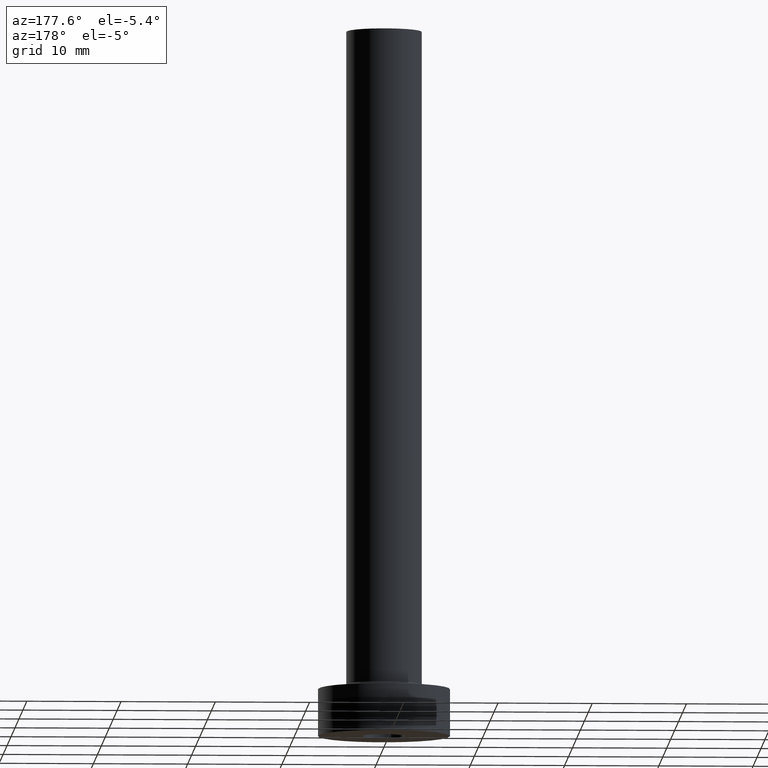
[diagram: clean part render]
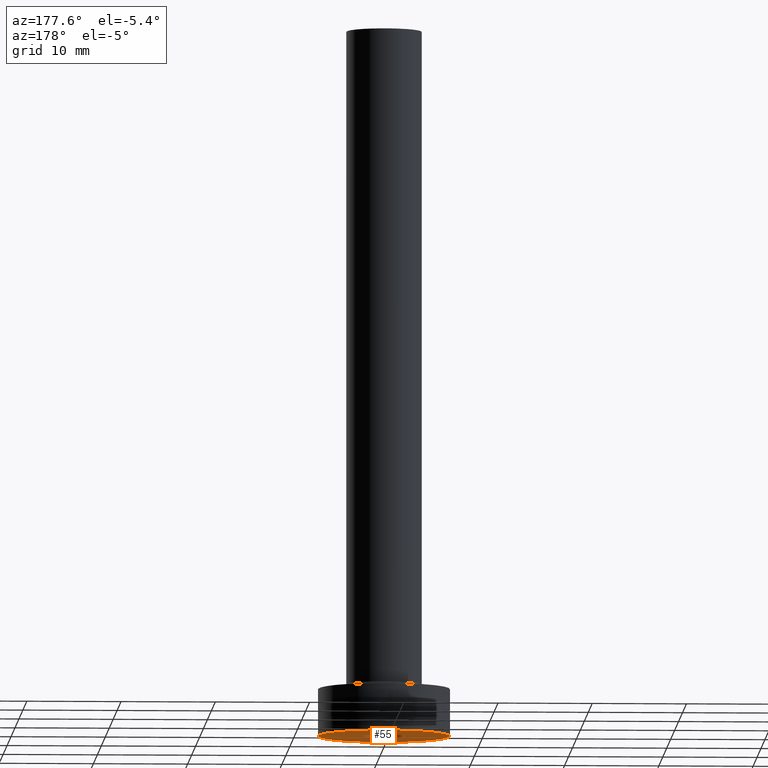
[diagram: same view with one face highlighted and labeled with its STEP entity id]
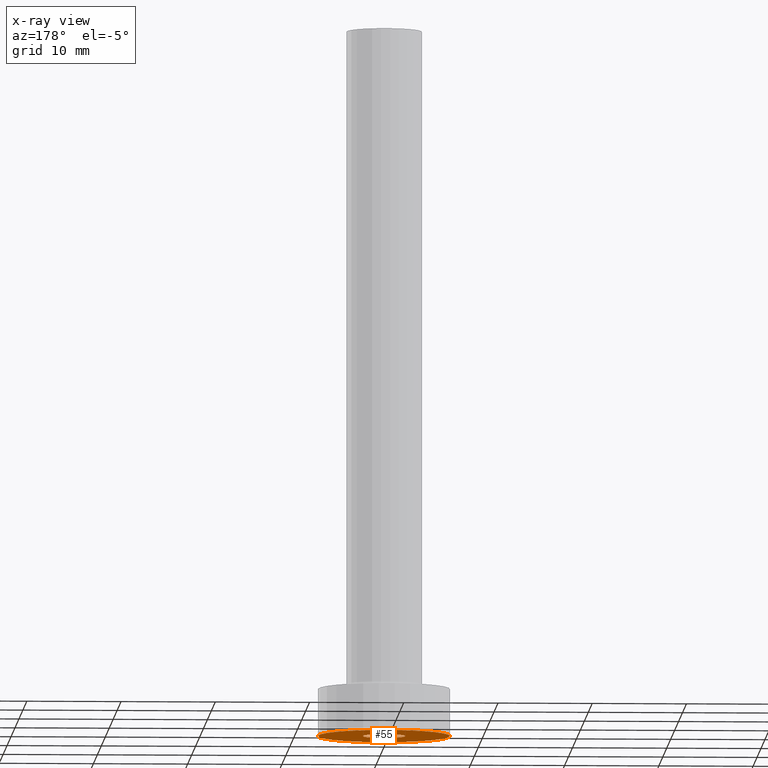
[diagram: x-ray of the same camera — body ghosted, the highlighted face saturated]
A machine part, auxiliary view. The second image highlights one B-rep face of the part: STEP entity #55.
The next image is the same camera in x-ray: the body ghosted, the highlighted face saturated — about 0% of this face is hidden behind the body in this view.
In plain terms, the highlighted planar face has unit normal (0, 0, 1).
Its self-contained STEP definition (entity closure, byte-faithful):
#2 = AXIS2_PLACEMENT_3D ( 'NONE', #210, #122, #198 ) ;
#17 = EDGE_LOOP ( 'NONE', ( #237, #447 ) ) ;
#21 = DIRECTION ( 'NONE',  ( 1.000000000000000000, 0.000000000000000000, 0.000000000000000000 ) ) ;
#55 = ADVANCED_FACE ( 'NONE', ( #299, #445 ), #199, .F. ) ;
#74 = CARTESIAN_POINT ( 'NONE',  ( 2.250000000000000000, 2.755455298081544285E-16, 0.000000000000000000 ) ) ;
#99 = EDGE_CURVE ( 'NONE', #412, #115, #212, .T. ) ;
#115 = VERTEX_POINT ( 'NONE', #383 ) ;
#119 = CIRCLE ( 'NONE', #379, 7.000000000000000000 ) ;
#122 = DIRECTION ( 'NONE',  ( -0.000000000000000000, -0.000000000000000000, -1.000000000000000000 ) ) ;
#132 = CIRCLE ( 'NONE', #182, 2.250000000000000000 ) ;
#161 = DIRECTION ( 'NONE',  ( 1.000000000000000000, 0.000000000000000000, 0.000000000000000000 ) ) ;
#163 = CARTESIAN_POINT ( 'NONE',  ( 0.000000000000000000, 0.000000000000000000, 0.000000000000000000 ) ) ;
#176 = DIRECTION ( 'NONE',  ( 1.000000000000000000, 0.000000000000000000, 0.000000000000000000 ) ) ;
#177 = DIRECTION ( 'NONE',  ( 0.000000000000000000, 0.000000000000000000, 1.000000000000000000 ) ) ;
#182 = AXIS2_PLACEMENT_3D ( 'NONE', #389, #350, #176 ) ;
#198 = DIRECTION ( 'NONE',  ( 1.000000000000000000, 0.000000000000000000, 0.000000000000000000 ) ) ;
#199 = PLANE ( 'NONE',  #213 ) ;
#210 = CARTESIAN_POINT ( 'NONE',  ( 0.000000000000000000, 0.000000000000000000, 0.000000000000000000 ) ) ;
#212 = CIRCLE ( 'NONE', #2, 2.250000000000000000 ) ;
#213 = AXIS2_PLACEMENT_3D ( 'NONE', #163, #329, #427 ) ;
#216 = VERTEX_POINT ( 'NONE', #279 ) ;
#237 = ORIENTED_EDGE ( 'NONE', *, *, #238, .F. ) ;
#238 = EDGE_CURVE ( 'NONE', #115, #412, #132, .T. ) ;
#254 = CARTESIAN_POINT ( 'NONE',  ( 7.000000000000000000, 8.572527594031473190E-16, 0.000000000000000000 ) ) ;
#256 = VERTEX_POINT ( 'NONE', #254 ) ;
#279 = CARTESIAN_POINT ( 'NONE',  ( -7.000000000000000000, 0.000000000000000000, 0.000000000000000000 ) ) ;
#292 = ORIENTED_EDGE ( 'NONE', *, *, #335, .F. ) ;
#295 = DIRECTION ( 'NONE',  ( 0.000000000000000000, 0.000000000000000000, 1.000000000000000000 ) ) ;
#299 = FACE_BOUND ( 'NONE', #17, .T. ) ;
#303 = ORIENTED_EDGE ( 'NONE', *, *, #460, .F. ) ;
#329 = DIRECTION ( 'NONE',  ( 0.000000000000000000, 0.000000000000000000, 1.000000000000000000 ) ) ;
#332 = CARTESIAN_POINT ( 'NONE',  ( 0.000000000000000000, 0.000000000000000000, 0.000000000000000000 ) ) ;
#335 = EDGE_CURVE ( 'NONE', #216, #256, #119, .T. ) ;
#350 = DIRECTION ( 'NONE',  ( -0.000000000000000000, -0.000000000000000000, -1.000000000000000000 ) ) ;
#379 = AXIS2_PLACEMENT_3D ( 'NONE', #332, #295, #161 ) ;
#383 = CARTESIAN_POINT ( 'NONE',  ( -2.250000000000000000, 0.000000000000000000, 0.000000000000000000 ) ) ;
#389 = CARTESIAN_POINT ( 'NONE',  ( 0.000000000000000000, 0.000000000000000000, 0.000000000000000000 ) ) ;
#401 = CIRCLE ( 'NONE', #456, 7.000000000000000000 ) ;
#412 = VERTEX_POINT ( 'NONE', #74 ) ;
#422 = CARTESIAN_POINT ( 'NONE',  ( 0.000000000000000000, 0.000000000000000000, 0.000000000000000000 ) ) ;
#427 = DIRECTION ( 'NONE',  ( 1.000000000000000000, 0.000000000000000000, -0.000000000000000000 ) ) ;
#440 = EDGE_LOOP ( 'NONE', ( #292, #303 ) ) ;
#445 = FACE_OUTER_BOUND ( 'NONE', #440, .T. ) ;
#447 = ORIENTED_EDGE ( 'NONE', *, *, #99, .F. ) ;
#456 = AXIS2_PLACEMENT_3D ( 'NONE', #422, #177, #21 ) ;
#460 = EDGE_CURVE ( 'NONE', #256, #216, #401, .T. ) ;